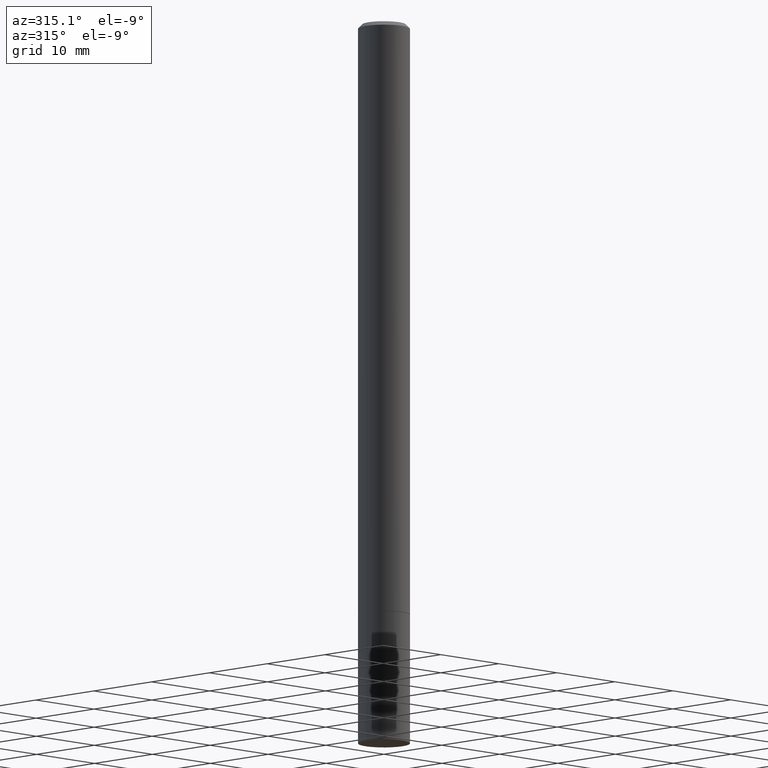
[diagram: clean part render]
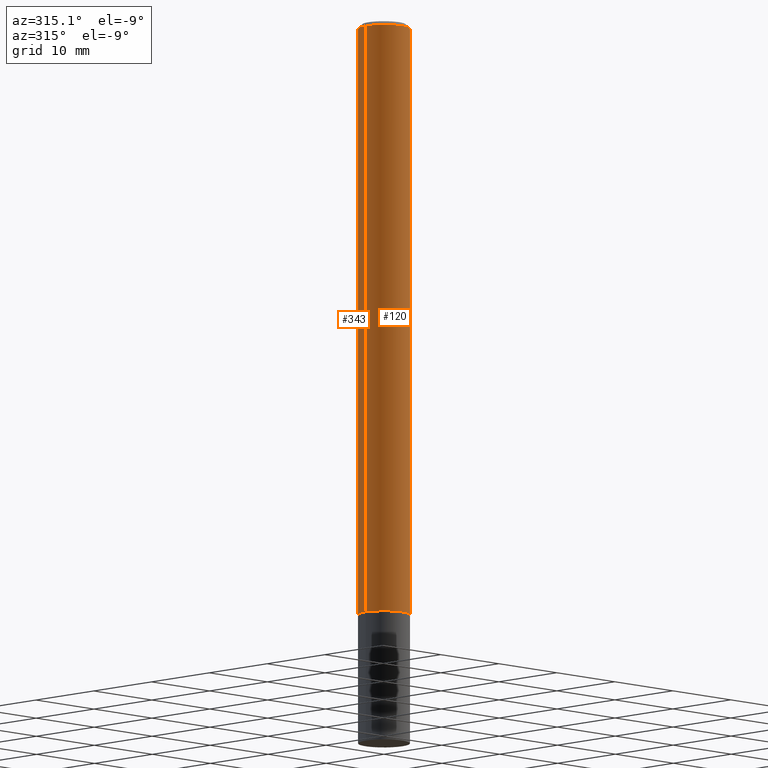
[diagram: same view with one multi-face feature highlighted, each face labeled with its STEP entity id]
A machine part, auxiliary view. The highlighted faces form ONE feature: a constant-radius fillet chain: 2 tangent blend faces with common blend radius 3.175 mm. The faces share edges in the B-rep.
Their STEP definitions:
[1] entity #343 (Cylinder):
#4 = VECTOR ( 'NONE', #281, 39.37007874015748143 ) ;
#12 = VERTEX_POINT ( 'NONE', #41 ) ;
#14 = VERTEX_POINT ( 'NONE', #352 ) ;
#16 = DIRECTION ( 'NONE',  ( -2.445468806185136877E-29, 3.491481338843145188E-15, 1.000000000000000000 ) ) ;
#17 = ORIENTED_EDGE ( 'NONE', *, *, #183, .T. ) ;
#32 = DIRECTION ( 'NONE',  ( -2.445468806185136597E-29, 3.491481338843145583E-15, 1.000000000000000000 ) ) ;
#37 = VERTEX_POINT ( 'NONE', #90 ) ;
#41 = CARTESIAN_POINT ( 'NONE',  ( 0.1250000000000000278, -1.090738770254598344E-14, -2.874000000000000110 ) ) ;
#53 = DIRECTION ( 'NONE',  ( 1.000000000000000000, -6.982962677686261189E-15, 0.000000000000000000 ) ) ;
#57 = CARTESIAN_POINT ( 'NONE',  ( -0.1249999999999998612, 8.881784197001242463E-16, -6.148668862818625221E-30 ) ) ;
#59 = EDGE_CURVE ( 'NONE', #12, #37, #270, .T. ) ;
#85 = CARTESIAN_POINT ( 'NONE',  ( 4.890937612370285420E-31, -6.982962677686308865E-17, -0.02000000000000005246 ) ) ;
#90 = CARTESIAN_POINT ( 'NONE',  ( 0.1249999999999996947, -9.273918764983023769E-16, -0.02000000000000005246 ) ) ;
#97 = AXIS2_PLACEMENT_3D ( 'NONE', #85, #32, #259 ) ;
#149 = CYLINDRICAL_SURFACE ( 'NONE', #215, 0.1249999999999998612 ) ;
#164 = ORIENTED_EDGE ( 'NONE', *, *, #59, .F. ) ;
#169 = CIRCLE ( 'NONE', #97, 0.1249999999999996947 ) ;
#171 = DIRECTION ( 'NONE',  ( -2.445468806185136597E-29, 3.491481338843145583E-15, 1.000000000000000000 ) ) ;
#174 = DIRECTION ( 'NONE',  ( 1.000000000000000000, -6.982962677686266711E-15, 4.876176775795935793E-29 ) ) ;
#183 = EDGE_CURVE ( 'NONE', #12, #217, #313, .T. ) ;
#185 = ORIENTED_EDGE ( 'NONE', *, *, #227, .T. ) ;
#197 = CARTESIAN_POINT ( 'NONE',  ( 0.000000000000000000, 0.000000000000000000, 0.000000000000000000 ) ) ;
#215 = AXIS2_PLACEMENT_3D ( 'NONE', #197, #171, #174 ) ;
#217 = VERTEX_POINT ( 'NONE', #247 ) ;
#227 = EDGE_CURVE ( 'NONE', #217, #14, #310, .T. ) ;
#247 = CARTESIAN_POINT ( 'NONE',  ( -0.1250000000000000278, -4.163995077605900155E-15, -2.874000000000000110 ) ) ;
#248 = EDGE_LOOP ( 'NONE', ( #17, #185, #304, #164 ) ) ;
#252 = EDGE_CURVE ( 'NONE', #37, #14, #169, .T. ) ;
#259 = DIRECTION ( 'NONE',  ( 1.000000000000000000, -6.982962677686266711E-15, 0.000000000000000000 ) ) ;
#260 = FACE_OUTER_BOUND ( 'NONE', #248, .T. ) ;
#269 = VECTOR ( 'NONE', #16, 39.37007874015748143 ) ;
#270 = LINE ( 'NONE', #317, #269 ) ;
#281 = DIRECTION ( 'NONE',  ( -2.445468806185136877E-29, 3.491481338843145188E-15, 1.000000000000000000 ) ) ;
#297 = AXIS2_PLACEMENT_3D ( 'NONE', #354, #356, #53 ) ;
#304 = ORIENTED_EDGE ( 'NONE', *, *, #252, .F. ) ;
#310 = LINE ( 'NONE', #57, #4 ) ;
#313 = CIRCLE ( 'NONE', #297, 0.1250000000000000278 ) ;
#317 = CARTESIAN_POINT ( 'NONE',  ( 0.1249999999999998612, -8.728703347107823527E-16, 6.095220969744912735E-30 ) ) ;
#343 = ADVANCED_FACE ( 'NONE', ( #260 ), #149, .T. ) ;
#352 = CARTESIAN_POINT ( 'NONE',  ( -0.1249999999999996947, 8.030407079339180685E-16, -0.02000000000000005246 ) ) ;
#354 = CARTESIAN_POINT ( 'NONE',  ( 7.028277348976082113E-29, -1.003451736783520168E-14, -2.874000000000000110 ) ) ;
#356 = DIRECTION ( 'NONE',  ( -2.445468806185136597E-29, 3.491481338843145583E-15, 1.000000000000000000 ) ) ;
[2] entity #120 (Cylinder):
#3 = CARTESIAN_POINT ( 'NONE',  ( 4.890937612370285420E-31, -6.982962677686308865E-17, -0.02000000000000005246 ) ) ;
#4 = VECTOR ( 'NONE', #281, 39.37007874015748143 ) ;
#12 = VERTEX_POINT ( 'NONE', #41 ) ;
#14 = VERTEX_POINT ( 'NONE', #352 ) ;
#16 = DIRECTION ( 'NONE',  ( -2.445468806185136877E-29, 3.491481338843145188E-15, 1.000000000000000000 ) ) ;
#21 = ORIENTED_EDGE ( 'NONE', *, *, #27, .F. ) ;
#24 = DIRECTION ( 'NONE',  ( 1.000000000000000000, -6.982962677686261189E-15, 0.000000000000000000 ) ) ;
#27 = EDGE_CURVE ( 'NONE', #14, #37, #55, .T. ) ;
#31 = CIRCLE ( 'NONE', #340, 0.1250000000000000278 ) ;
#37 = VERTEX_POINT ( 'NONE', #90 ) ;
#41 = CARTESIAN_POINT ( 'NONE',  ( 0.1250000000000000278, -1.090738770254598344E-14, -2.874000000000000110 ) ) ;
#55 = CIRCLE ( 'NONE', #139, 0.1249999999999996947 ) ;
#57 = CARTESIAN_POINT ( 'NONE',  ( -0.1249999999999998612, 8.881784197001242463E-16, -6.148668862818625221E-30 ) ) ;
#59 = EDGE_CURVE ( 'NONE', #12, #37, #270, .T. ) ;
#68 = DIRECTION ( 'NONE',  ( 1.000000000000000000, -6.982962677686266711E-15, 0.000000000000000000 ) ) ;
#75 = CARTESIAN_POINT ( 'NONE',  ( 0.000000000000000000, 0.000000000000000000, 0.000000000000000000 ) ) ;
#90 = CARTESIAN_POINT ( 'NONE',  ( 0.1249999999999996947, -9.273918764983023769E-16, -0.02000000000000005246 ) ) ;
#99 = DIRECTION ( 'NONE',  ( -2.445468806185136597E-29, 3.491481338843145583E-15, 1.000000000000000000 ) ) ;
#120 = ADVANCED_FACE ( 'NONE', ( #276 ), #212, .T. ) ;
#124 = ORIENTED_EDGE ( 'NONE', *, *, #59, .T. ) ;
#128 = DIRECTION ( 'NONE',  ( -2.445468806185136597E-29, 3.491481338843145583E-15, 1.000000000000000000 ) ) ;
#136 = DIRECTION ( 'NONE',  ( -2.445468806185136597E-29, 3.491481338843145583E-15, 1.000000000000000000 ) ) ;
#138 = DIRECTION ( 'NONE',  ( 1.000000000000000000, -6.982962677686266711E-15, 4.876176775795935793E-29 ) ) ;
#139 = AXIS2_PLACEMENT_3D ( 'NONE', #3, #99, #68 ) ;
#161 = AXIS2_PLACEMENT_3D ( 'NONE', #75, #128, #138 ) ;
#212 = CYLINDRICAL_SURFACE ( 'NONE', #161, 0.1249999999999998612 ) ;
#217 = VERTEX_POINT ( 'NONE', #247 ) ;
#227 = EDGE_CURVE ( 'NONE', #217, #14, #310, .T. ) ;
#247 = CARTESIAN_POINT ( 'NONE',  ( -0.1250000000000000278, -4.163995077605900155E-15, -2.874000000000000110 ) ) ;
#249 = CARTESIAN_POINT ( 'NONE',  ( 7.028277348976082113E-29, -1.003451736783520168E-14, -2.874000000000000110 ) ) ;
#269 = VECTOR ( 'NONE', #16, 39.37007874015748143 ) ;
#270 = LINE ( 'NONE', #317, #269 ) ;
#276 = FACE_OUTER_BOUND ( 'NONE', #321, .T. ) ;
#281 = DIRECTION ( 'NONE',  ( -2.445468806185136877E-29, 3.491481338843145188E-15, 1.000000000000000000 ) ) ;
#310 = LINE ( 'NONE', #57, #4 ) ;
#315 = ORIENTED_EDGE ( 'NONE', *, *, #227, .F. ) ;
#317 = CARTESIAN_POINT ( 'NONE',  ( 0.1249999999999998612, -8.728703347107823527E-16, 6.095220969744912735E-30 ) ) ;
#321 = EDGE_LOOP ( 'NONE', ( #315, #361, #124, #21 ) ) ;
#326 = EDGE_CURVE ( 'NONE', #217, #12, #31, .T. ) ;
#340 = AXIS2_PLACEMENT_3D ( 'NONE', #249, #136, #24 ) ;
#352 = CARTESIAN_POINT ( 'NONE',  ( -0.1249999999999996947, 8.030407079339180685E-16, -0.02000000000000005246 ) ) ;
#361 = ORIENTED_EDGE ( 'NONE', *, *, #326, .T. ) ;